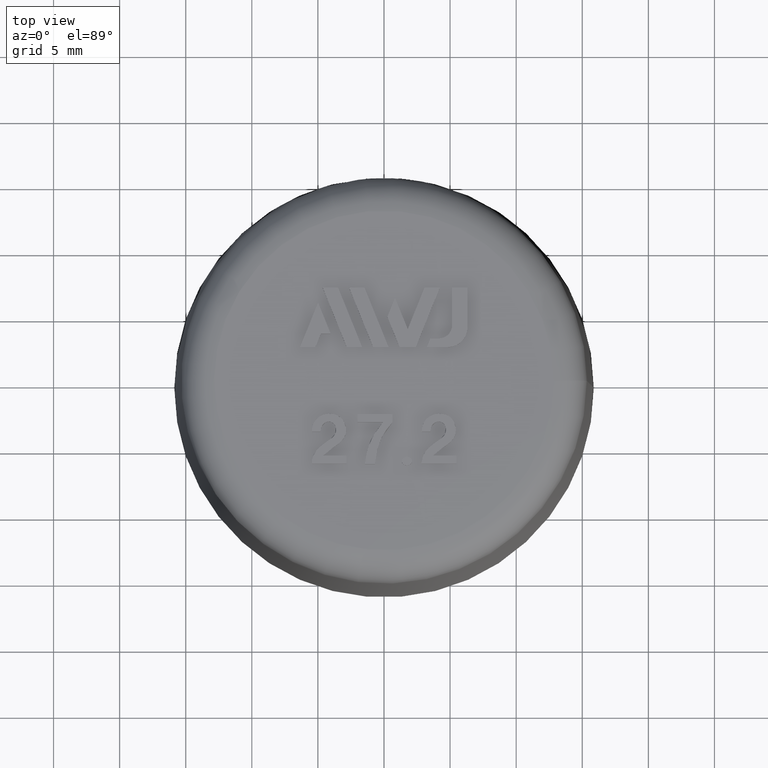
[diagram: clean part render]
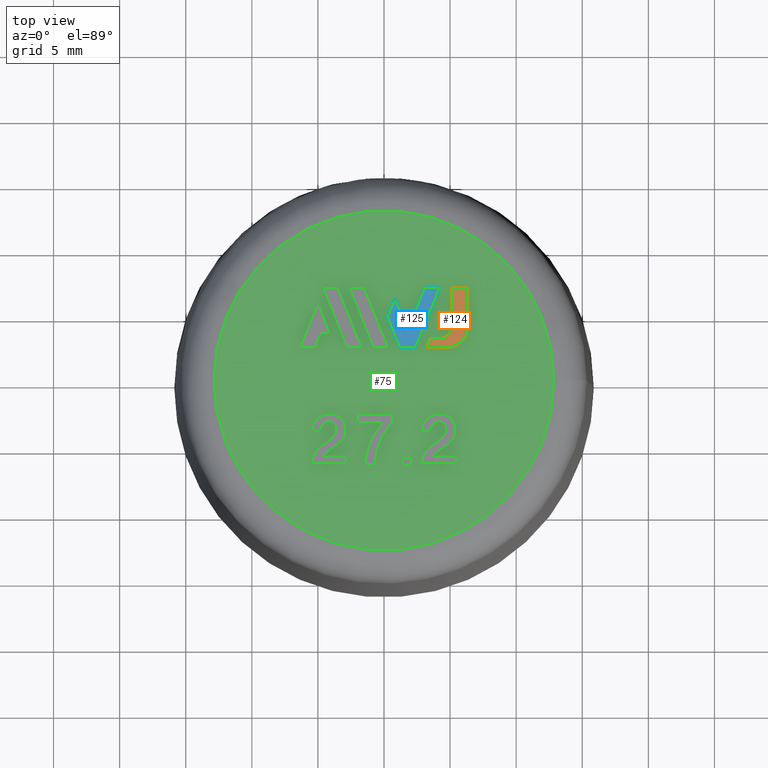
[diagram: same view with three faces highlighted in distinct colors, each labeled with its STEP entity id]
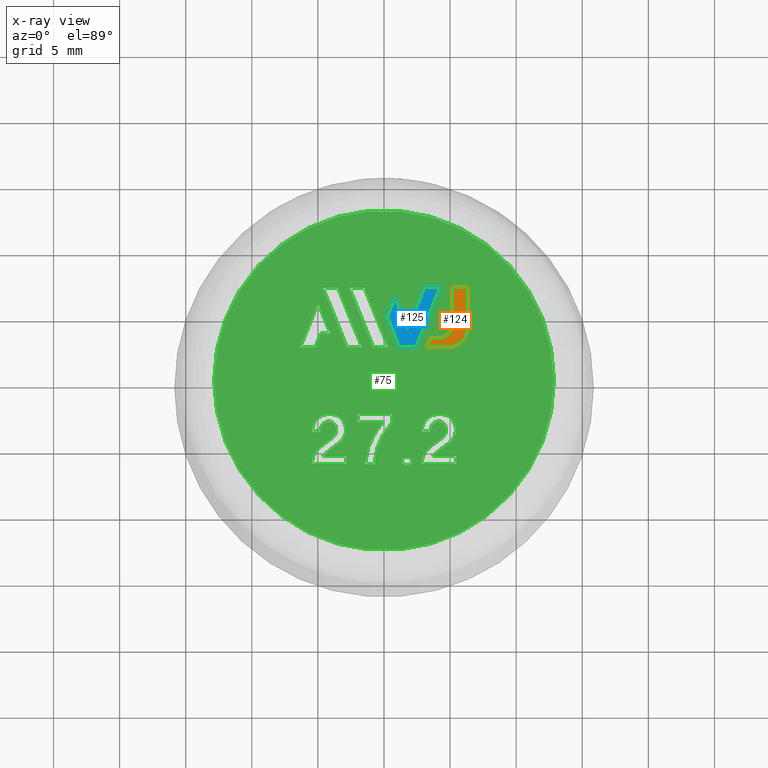
[diagram: x-ray of the same camera — body ghosted, the three highlighted faces saturated]
A machine part, top view with three faces highlighted in distinct colors.
The next image is the same camera in x-ray (body ghosted, the three faces saturated) — at least one of them is partly hidden behind the body in this view.
Their STEP definitions:

[orange] entity #124 — the highlighted planar face has unit normal (0, 0, -1).
#124 = ADVANCED_FACE( '', ( #253 ), #254, .F. );
#253 = FACE_OUTER_BOUND( '', #403, .T. );
#254 = PLANE( '', #404 );
#403 = EDGE_LOOP( '', ( #876, #877, #878, #879, #880, #881, #882, #883 ) );
#404 = AXIS2_PLACEMENT_3D( '', #884, #885, #886 );
#876 = ORIENTED_EDGE( '', *, *, #1113, .T. );
#877 = ORIENTED_EDGE( '', *, *, #1076, .T. );
#878 = ORIENTED_EDGE( '', *, *, #1114, .T. );
#879 = ORIENTED_EDGE( '', *, *, #1115, .T. );
#880 = ORIENTED_EDGE( '', *, *, #1116, .T. );
#881 = ORIENTED_EDGE( '', *, *, #1117, .T. );
#882 = ORIENTED_EDGE( '', *, *, #1118, .T. );
#883 = ORIENTED_EDGE( '', *, *, #1119, .T. );
#884 = CARTESIAN_POINT( '', ( 4.14390200000000, 4.15528254380107, 32.5000000000000 ) );
#885 = DIRECTION( '', ( 6.12303176911189E-017, 0.000000000000000, -1.00000000000000 ) );
#886 = DIRECTION( '', ( -0.780868809443032, 0.624695047554422, -4.78128452772826E-017 ) );
#1076 = EDGE_CURVE( '', #1299, #1297, #1300, .T. );
#1113 = EDGE_CURVE( '', #1353, #1299, #1354, .T. );
#1114 = EDGE_CURVE( '', #1297, #1355, #1356, .T. );
#1115 = EDGE_CURVE( '', #1355, #1357, #1358, .T. );
#1116 = EDGE_CURVE( '', #1357, #1359, #1360, .T. );
#1117 = EDGE_CURVE( '', #1359, #1361, #1362, .T. );
#1118 = EDGE_CURVE( '', #1361, #1363, #1364, .T. );
#1119 = EDGE_CURVE( '', #1363, #1353, #1365, .T. );
#1297 = VERTEX_POINT( '', #1754 );
#1299 = VERTEX_POINT( '', #1757 );
#1300 = LINE( '', #1758, #1759 );
#1353 = VERTEX_POINT( '', #1877 );
#1354 = LINE( '', #1878, #1879 );
#1355 = VERTEX_POINT( '', #1880 );
#1356 = CIRCLE( '', #1881, 1.00000000000000 );
#1357 = VERTEX_POINT( '', #1882 );
#1358 = LINE( '', #1883, #1884 );
#1359 = VERTEX_POINT( '', #1885 );
#1360 = LINE( '', #1886, #1887 );
#1361 = VERTEX_POINT( '', #1888 );
#1362 = LINE( '', #1889, #1890 );
#1363 = VERTEX_POINT( '', #1891 );
#1364 = CIRCLE( '', #1892, 1.50000000000000 );
#1365 = LINE( '', #1893, #1894 );
#1754 = CARTESIAN_POINT( '', ( 5.14390199999999, 4.15528254380107, 32.5000000000000 ) );
#1757 = CARTESIAN_POINT( '', ( 5.14390199999999, 6.99808404380107, 32.5000000000000 ) );
#1758 = CARTESIAN_POINT( '', ( 5.14390199999999, 6.99808404380107, 32.5000000000000 ) );
#1759 = VECTOR( '', #2004, 1000.00000000000 );
#1877 = CARTESIAN_POINT( '', ( 6.31907500000000, 6.99808404380107, 32.5000000000000 ) );
#1878 = CARTESIAN_POINT( '', ( 6.31907500000000, 6.99808404380107, 32.5000000000000 ) );
#1879 = VECTOR( '', #2035, 1000.00000000000 );
#1880 = CARTESIAN_POINT( '', ( 4.14390200000000, 3.15528254380107, 32.5000000000000 ) );
#1881 = AXIS2_PLACEMENT_3D( '', #2036, #2037, #2038 );
#1882 = CARTESIAN_POINT( '', ( 3.50517850000000, 3.15528254380107, 32.5000000000000 ) );
#1883 = CARTESIAN_POINT( '', ( 4.14390200000000, 3.15528254380107, 32.5000000000000 ) );
#1884 = VECTOR( '', #2039, 1000.00000000000 );
#1885 = CARTESIAN_POINT( '', ( 3.24098350000000, 2.50137604380106, 32.5000000000000 ) );
#1886 = CARTESIAN_POINT( '', ( 3.50517850000000, 3.15528254380107, 32.5000000000000 ) );
#1887 = VECTOR( '', #2040, 1000.00000000000 );
#1888 = CARTESIAN_POINT( '', ( 4.81907500000000, 2.50137604380106, 32.5000000000000 ) );
#1889 = CARTESIAN_POINT( '', ( 3.24098350000000, 2.50137604380106, 32.5000000000000 ) );
#1890 = VECTOR( '', #2041, 1000.00000000000 );
#1891 = CARTESIAN_POINT( '', ( 6.31907500000000, 4.00137604380106, 32.5000000000000 ) );
#1892 = AXIS2_PLACEMENT_3D( '', #2042, #2043, #2044 );
#1893 = CARTESIAN_POINT( '', ( 6.31907500000000, 4.00137604380106, 32.5000000000000 ) );
#1894 = VECTOR( '', #2045, 1000.00000000000 );
#2004 = DIRECTION( '', ( 4.28840465070809E-050, -1.00000000000000, -7.00372758531367E-034 ) );
#2035 = DIRECTION( '', ( -1.00000000000000, 1.11022302462516E-016, -1.83690953073357E-016 ) );
#2036 = CARTESIAN_POINT( '', ( 4.14390200000000, 4.15528254380107, 32.5000000000000 ) );
#2037 = DIRECTION( '', ( 6.12303176911189E-017, 0.000000000000000, -1.00000000000000 ) );
#2038 = DIRECTION( '', ( 1.00000000000000, 2.22044604925031E-016, 6.12303176911189E-017 ) );
#2039 = DIRECTION( '', ( -1.00000000000000, 1.11022302462516E-016, -1.83690953073357E-016 ) );
#2040 = DIRECTION( '', ( -0.374606136016172, -0.927184039368147, -6.88117581519382E-017 ) );
#2041 = DIRECTION( '', ( 1.00000000000000, -1.11022302462516E-016, 1.83690953073357E-016 ) );
#2042 = CARTESIAN_POINT( '', ( 4.81907500000000, 4.00137604380106, 32.5000000000000 ) );
#2043 = DIRECTION( '', ( -6.12303176911189E-017, 4.86561966779450E-048, 1.00000000000000 ) );
#2044 = DIRECTION( '', ( 1.00000000000000, 3.88578058618805E-016, 6.12303176911189E-017 ) );
#2045 = DIRECTION( '', ( -4.28840465070809E-050, 1.00000000000000, 7.00372758531368E-034 ) );

[blue] entity #125 — the highlighted planar face has unit normal (-0, 0, 1).
#125 = ADVANCED_FACE( '', ( #255 ), #256, .T. );
#255 = FACE_OUTER_BOUND( '', #405, .T. );
#256 = PLANE( '', #406 );
#405 = EDGE_LOOP( '', ( #887, #888, #889, #890, #891, #892, #893 ) );
#406 = AXIS2_PLACEMENT_3D( '', #894, #895, #896 );
#887 = ORIENTED_EDGE( '', *, *, #1096, .T. );
#888 = ORIENTED_EDGE( '', *, *, #1120, .T. );
#889 = ORIENTED_EDGE( '', *, *, #1121, .T. );
#890 = ORIENTED_EDGE( '', *, *, #1122, .T. );
#891 = ORIENTED_EDGE( '', *, *, #1123, .T. );
#892 = ORIENTED_EDGE( '', *, *, #1124, .T. );
#893 = ORIENTED_EDGE( '', *, *, #1125, .T. );
#894 = CARTESIAN_POINT( '', ( 4.22159400000000, 6.99808404380107, 32.5000000000000 ) );
#895 = DIRECTION( '', ( -1.83690953073357E-016, 0.000000000000000, 1.00000000000000 ) );
#896 = DIRECTION( '', ( 0.780868809443032, -0.624695047554422, 1.43438535831848E-016 ) );
#1096 = EDGE_CURVE( '', #1330, #1328, #1331, .T. );
#1120 = EDGE_CURVE( '', #1328, #1366, #1367, .T. );
#1121 = EDGE_CURVE( '', #1366, #1368, #1369, .T. );
#1122 = EDGE_CURVE( '', #1368, #1370, #1371, .T. );
#1123 = EDGE_CURVE( '', #1370, #1372, #1373, .T. );
#1124 = EDGE_CURVE( '', #1372, #1374, #1375, .T. );
#1125 = EDGE_CURVE( '', #1374, #1330, #1376, .T. );
#1328 = VERTEX_POINT( '', #1804 );
#1330 = VERTEX_POINT( '', #1807 );
#1331 = LINE( '', #1808, #1809 );
#1366 = VERTEX_POINT( '', #1895 );
#1367 = LINE( '', #1896, #1897 );
#1368 = VERTEX_POINT( '', #1898 );
#1369 = LINE( '', #1899, #1900 );
#1370 = VERTEX_POINT( '', #1901 );
#1371 = LINE( '', #1902, #1903 );
#1372 = VERTEX_POINT( '', #1904 );
#1373 = LINE( '', #1905, #1906 );
#1374 = VERTEX_POINT( '', #1907 );
#1375 = LINE( '', #1908, #1909 );
#1376 = LINE( '', #1910, #1911 );
#1804 = CARTESIAN_POINT( '', ( 4.22159400000000, 6.99808404380107, 32.5000000000000 ) );
#1807 = CARTESIAN_POINT( '', ( 2.40489699999999, 2.50137604380106, 32.5000000000000 ) );
#1808 = CARTESIAN_POINT( '', ( 2.40489699999999, 2.50137604380107, 32.5000000000000 ) );
#1809 = VECTOR( '', #2026, 1000.00000000000 );
#1895 = CARTESIAN_POINT( '', ( 3.05959900000000, 6.99808404380107, 32.5000000000000 ) );
#1896 = CARTESIAN_POINT( '', ( 4.22159400000000, 6.99808404380107, 32.5000000000000 ) );
#1897 = VECTOR( '', #2046, 1000.00000000000 );
#1898 = CARTESIAN_POINT( '', ( 1.79060100000000, 3.85757254380107, 32.5000000000000 ) );
#1899 = CARTESIAN_POINT( '', ( 3.05959900000000, 6.99808404380107, 32.5000000000000 ) );
#1900 = VECTOR( '', #2047, 1000.00000000000 );
#1901 = CARTESIAN_POINT( '', ( 0.831794000000000, 6.23059354380108, 32.5000000000000 ) );
#1902 = CARTESIAN_POINT( '', ( 1.79060100000000, 3.85757254380107, 32.5000000000000 ) );
#1903 = VECTOR( '', #2048, 1000.00000000000 );
#1904 = CARTESIAN_POINT( '', ( 0.250796500000001, 4.79232254380108, 32.5000000000000 ) );
#1905 = CARTESIAN_POINT( '', ( 0.831793999999997, 6.23059354380108, 32.5000000000000 ) );
#1906 = VECTOR( '', #2049, 1000.00000000000 );
#1907 = CARTESIAN_POINT( '', ( 1.17656050000000, 2.50137604380106, 32.5000000000000 ) );
#1908 = CARTESIAN_POINT( '', ( 0.250796500000002, 4.79232254380108, 32.5000000000000 ) );
#1909 = VECTOR( '', #2050, 1000.00000000000 );
#1910 = CARTESIAN_POINT( '', ( 1.17656050000000, 2.50137604380106, 32.5000000000000 ) );
#1911 = VECTOR( '', #2051, 1000.00000000000 );
#2026 = DIRECTION( '', ( 0.374590469627020, 0.927190368837278, 6.88088803779836E-017 ) );
#2046 = DIRECTION( '', ( -1.00000000000000, 1.11022302462516E-016, -1.83690953073357E-016 ) );
#2047 = DIRECTION( '', ( -0.374644407000048, -0.927168575990139, -6.88187881854414E-017 ) );
#2048 = DIRECTION( '', ( -0.374621466961798, 0.927177845125405, -6.88145743079517E-017 ) );
#2049 = DIRECTION( '', ( -0.374550228315492, -0.927206625552693, -6.88014884131161E-017 ) );
#2050 = DIRECTION( '', ( 0.374662791989133, -0.927161146888127, 6.88221653416086E-017 ) );
#2051 = DIRECTION( '', ( 1.00000000000000, 0.000000000000000, 1.83690953073357E-016 ) );

[green] entity #75 — the highlighted planar face has unit normal (0, 0, -1).
#75 = ADVANCED_FACE( '', ( #140, #141, #142, #143, #144, #145, #146, #147, #148, #149 ), #150, .F. );
#140 = FACE_BOUND( '', #283, .T. );
#141 = FACE_BOUND( '', #284, .T. );
#142 = FACE_BOUND( '', #285, .T. );
#143 = FACE_BOUND( '', #286, .T. );
#144 = FACE_BOUND( '', #287, .T. );
#145 = FACE_BOUND( '', #288, .T. );
#146 = FACE_OUTER_BOUND( '', #289, .T. );
#147 = FACE_BOUND( '', #290, .T. );
#148 = FACE_BOUND( '', #291, .T. );
#149 = FACE_BOUND( '', #292, .T. );
#150 = PLANE( '', #293 );
#283 = EDGE_LOOP( '', ( #433, #434, #435, #436, #437, #438 ) );
#284 = EDGE_LOOP( '', ( #439 ) );
#285 = EDGE_LOOP( '', ( #440, #441, #442, #443, #444, #445, #446 ) );
#286 = EDGE_LOOP( '', ( #447, #448, #449, #450, #451, #452 ) );
#287 = EDGE_LOOP( '', ( #453, #454, #455, #456 ) );
#288 = EDGE_LOOP( '', ( #457, #458, #459, #460, #461, #462, #463 ) );
#289 = EDGE_LOOP( '', ( #464 ) );
#290 = EDGE_LOOP( '', ( #465, #466, #467, #468, #469, #470, #471, #472 ) );
#291 = EDGE_LOOP( '', ( #473, #474, #475, #476 ) );
#292 = EDGE_LOOP( '', ( #477, #478, #479, #480, #481 ) );
#293 = AXIS2_PLACEMENT_3D( '', #482, #483, #484 );
#433 = ORIENTED_EDGE( '', *, *, #988, .T. );
#434 = ORIENTED_EDGE( '', *, *, #989, .T. );
#435 = ORIENTED_EDGE( '', *, *, #990, .T. );
#436 = ORIENTED_EDGE( '', *, *, #991, .T. );
#437 = ORIENTED_EDGE( '', *, *, #992, .T. );
#438 = ORIENTED_EDGE( '', *, *, #993, .T. );
#439 = ORIENTED_EDGE( '', *, *, #994, .T. );
#440 = ORIENTED_EDGE( '', *, *, #995, .T. );
#441 = ORIENTED_EDGE( '', *, *, #996, .T. );
#442 = ORIENTED_EDGE( '', *, *, #997, .T. );
#443 = ORIENTED_EDGE( '', *, *, #998, .T. );
#444 = ORIENTED_EDGE( '', *, *, #999, .T. );
#445 = ORIENTED_EDGE( '', *, *, #1000, .T. );
#446 = ORIENTED_EDGE( '', *, *, #1001, .T. );
#447 = ORIENTED_EDGE( '', *, *, #1002, .T. );
#448 = ORIENTED_EDGE( '', *, *, #1003, .T. );
#449 = ORIENTED_EDGE( '', *, *, #1004, .T. );
#450 = ORIENTED_EDGE( '', *, *, #1005, .T. );
#451 = ORIENTED_EDGE( '', *, *, #1006, .T. );
#452 = ORIENTED_EDGE( '', *, *, #1007, .T. );
#453 = ORIENTED_EDGE( '', *, *, #1008, .F. );
#454 = ORIENTED_EDGE( '', *, *, #1009, .F. );
#455 = ORIENTED_EDGE( '', *, *, #1010, .F. );
#456 = ORIENTED_EDGE( '', *, *, #1011, .F. );
#457 = ORIENTED_EDGE( '', *, *, #1012, .F. );
#458 = ORIENTED_EDGE( '', *, *, #1013, .F. );
#459 = ORIENTED_EDGE( '', *, *, #1014, .F. );
#460 = ORIENTED_EDGE( '', *, *, #1015, .F. );
#461 = ORIENTED_EDGE( '', *, *, #1016, .F. );
#462 = ORIENTED_EDGE( '', *, *, #1017, .F. );
#463 = ORIENTED_EDGE( '', *, *, #1018, .F. );
#464 = ORIENTED_EDGE( '', *, *, #1019, .T. );
#465 = ORIENTED_EDGE( '', *, *, #1020, .F. );
#466 = ORIENTED_EDGE( '', *, *, #1021, .F. );
#467 = ORIENTED_EDGE( '', *, *, #1022, .F. );
#468 = ORIENTED_EDGE( '', *, *, #1023, .F. );
#469 = ORIENTED_EDGE( '', *, *, #1024, .F. );
#470 = ORIENTED_EDGE( '', *, *, #1025, .F. );
#471 = ORIENTED_EDGE( '', *, *, #1026, .F. );
#472 = ORIENTED_EDGE( '', *, *, #1027, .F. );
#473 = ORIENTED_EDGE( '', *, *, #1028, .F. );
#474 = ORIENTED_EDGE( '', *, *, #1029, .F. );
#475 = ORIENTED_EDGE( '', *, *, #1030, .F. );
#476 = ORIENTED_EDGE( '', *, *, #1031, .F. );
#477 = ORIENTED_EDGE( '', *, *, #1032, .F. );
#478 = ORIENTED_EDGE( '', *, *, #1033, .F. );
#479 = ORIENTED_EDGE( '', *, *, #1034, .F. );
#480 = ORIENTED_EDGE( '', *, *, #1035, .F. );
#481 = ORIENTED_EDGE( '', *, *, #1036, .F. );
#482 = CARTESIAN_POINT( '', ( -1.95937016611580E-015, 12.8468253945189, 32.0000000000000 ) );
#483 = DIRECTION( '', ( 6.12303176911189E-017, 0.000000000000000, -1.00000000000000 ) );
#484 = DIRECTION( '', ( -1.00000000000000, 0.000000000000000, -6.12303176911189E-017 ) );
#988 = EDGE_CURVE( '', #1137, #1138, #1139, .T. );
#989 = EDGE_CURVE( '', #1138, #1140, #1141, .T. );
#990 = EDGE_CURVE( '', #1140, #1142, #1143, .T. );
#991 = EDGE_CURVE( '', #1142, #1144, #1145, .T. );
#992 = EDGE_CURVE( '', #1144, #1146, #1147, .T. );
#993 = EDGE_CURVE( '', #1146, #1137, #1148, .T. );
#994 = EDGE_CURVE( '', #1149, #1149, #1150, .T. );
#995 = EDGE_CURVE( '', #1151, #1152, #1153, .T. );
#996 = EDGE_CURVE( '', #1152, #1154, #1155, .T. );
#997 = EDGE_CURVE( '', #1154, #1156, #1157, .T. );
#998 = EDGE_CURVE( '', #1156, #1158, #1159, .T. );
#999 = EDGE_CURVE( '', #1158, #1160, #1161, .T. );
#1000 = EDGE_CURVE( '', #1160, #1162, #1163, .T. );
#1001 = EDGE_CURVE( '', #1162, #1151, #1164, .T. );
#1002 = EDGE_CURVE( '', #1165, #1166, #1167, .T. );
#1003 = EDGE_CURVE( '', #1166, #1168, #1169, .T. );
#1004 = EDGE_CURVE( '', #1168, #1170, #1171, .T. );
#1005 = EDGE_CURVE( '', #1170, #1172, #1173, .T. );
#1006 = EDGE_CURVE( '', #1172, #1174, #1175, .T. );
#1007 = EDGE_CURVE( '', #1174, #1165, #1176, .T. );
#1008 = EDGE_CURVE( '', #1177, #1178, #1179, .T. );
#1009 = EDGE_CURVE( '', #1180, #1177, #1181, .T. );
#1010 = EDGE_CURVE( '', #1182, #1180, #1183, .T. );
#1011 = EDGE_CURVE( '', #1178, #1182, #1184, .T. );
#1012 = EDGE_CURVE( '', #1185, #1186, #1187, .T. );
#1013 = EDGE_CURVE( '', #1188, #1185, #1189, .T. );
#1014 = EDGE_CURVE( '', #1190, #1188, #1191, .T. );
#1015 = EDGE_CURVE( '', #1192, #1190, #1193, .T. );
#1016 = EDGE_CURVE( '', #1194, #1192, #1195, .T. );
#1017 = EDGE_CURVE( '', #1196, #1194, #1197, .T. );
#1018 = EDGE_CURVE( '', #1186, #1196, #1198, .T. );
#1019 = EDGE_CURVE( '', #1199, #1199, #1200, .T. );
#1020 = EDGE_CURVE( '', #1201, #1202, #1203, .T. );
#1021 = EDGE_CURVE( '', #1204, #1201, #1205, .T. );
#1022 = EDGE_CURVE( '', #1206, #1204, #1207, .T. );
#1023 = EDGE_CURVE( '', #1208, #1206, #1209, .T. );
#1024 = EDGE_CURVE( '', #1210, #1208, #1211, .T. );
#1025 = EDGE_CURVE( '', #1212, #1210, #1213, .T. );
#1026 = EDGE_CURVE( '', #1214, #1212, #1215, .T. );
#1027 = EDGE_CURVE( '', #1202, #1214, #1216, .T. );
#1028 = EDGE_CURVE( '', #1217, #1218, #1219, .T. );
#1029 = EDGE_CURVE( '', #1220, #1217, #1221, .T. );
#1030 = EDGE_CURVE( '', #1222, #1220, #1223, .T. );
#1031 = EDGE_CURVE( '', #1218, #1222, #1224, .T. );
#1032 = EDGE_CURVE( '', #1225, #1226, #1227, .T. );
#1033 = EDGE_CURVE( '', #1228, #1225, #1229, .T. );
#1034 = EDGE_CURVE( '', #1230, #1228, #1231, .T. );
#1035 = EDGE_CURVE( '', #1232, #1230, #1233, .T. );
#1036 = EDGE_CURVE( '', #1226, #1232, #1234, .T. );
#1137 = VERTEX_POINT( '', #1388 );
#1138 = VERTEX_POINT( '', #1389 );
#1139 = B_SPLINE_CURVE_WITH_KNOTS( '', 2, ( #1390, #1391, #1392 ), .UNSPECIFIED., .F., .F., ( 3, 3 ), ( 15.0000000000000, 16.0000000000000 ), .UNSPECIFIED. );
#1140 = VERTEX_POINT( '', #1393 );
#1141 = B_SPLINE_CURVE_WITH_KNOTS( '', 2, ( #1394, #1395, #1396, #1397, #1398, #1399, #1400, #1401, #1402, #1403, #1404, #1405, #1406 ), .UNSPECIFIED., .F., .F., ( 3, 2, 2, 2, 2, 2, 3 ), ( 0.000000000000000, 1.00000000000000, 2.00000000000000, 3.00000000000000, 4.00000000000000, 5.00000000000000, 6.00000000000000 ), .UNSPECIFIED. );
#1142 = VERTEX_POINT( '', #1407 );
#1143 = B_SPLINE_CURVE_WITH_KNOTS( '', 2, ( #1408, #1409, #1410 ), .UNSPECIFIED., .F., .F., ( 3, 3 ), ( 6.00000000000000, 7.00000000000000 ), .UNSPECIFIED. );
#1144 = VERTEX_POINT( '', #1411 );
#1145 = B_SPLINE_CURVE_WITH_KNOTS( '', 2, ( #1412, #1413, #1414 ), .UNSPECIFIED., .F., .F., ( 3, 3 ), ( 7.00000000000000, 8.00000000000000 ), .UNSPECIFIED. );
#1146 = VERTEX_POINT( '', #1415 );
#1147 = B_SPLINE_CURVE_WITH_KNOTS( '', 2, ( #1416, #1417, #1418 ), .UNSPECIFIED., .F., .F., ( 3, 3 ), ( 8.00000000000000, 9.00000000000000 ), .UNSPECIFIED. );
#1148 = B_SPLINE_CURVE_WITH_KNOTS( '', 2, ( #1419, #1420, #1421, #1422, #1423, #1424, #1425, #1426, #1427, #1428, #1429, #1430, #1431 ), .UNSPECIFIED., .F., .F., ( 3, 2, 2, 2, 2, 2, 3 ), ( 9.00000000000000, 10.0000000000000, 11.0000000000000, 12.0000000000000, 13.0000000000000, 14.0000000000000, 15.0000000000000 ), .UNSPECIFIED. );
#1149 = VERTEX_POINT( '', #1432 );
#1150 = B_SPLINE_CURVE_WITH_KNOTS( '', 2, ( #1433, #1434, #1435, #1436, #1437, #1438, #1439, #1440, #1441, #1442, #1443, #1444, #1445, #1446, #1447, #1448, #1449 ), .UNSPECIFIED., .T., .F., ( 3, 2, 2, 2, 2, 2, 2, 2, 3 ), ( 0.000000000000000, 1.00000000000000, 2.00000000000000, 3.00000000000000, 4.00000000000000, 5.00000000000000, 6.00000000000000, 7.00000000000000, 8.00000000000000 ), .UNSPECIFIED. );
#1151 = VERTEX_POINT( '', #1450 );
#1152 = VERTEX_POINT( '', #1451 );
#1153 = B_SPLINE_CURVE_WITH_KNOTS( '', 2, ( #1452, #1453, #1454 ), .UNSPECIFIED., .F., .F., ( 3, 3 ), ( 8.00000000000000, 9.00000000000000 ), .UNSPECIFIED. );
#1154 = VERTEX_POINT( '', #1455 );
#1155 = B_SPLINE_CURVE_WITH_KNOTS( '', 2, ( #1456, #1457, #1458 ), .UNSPECIFIED., .F., .F., ( 3, 3 ), ( 0.000000000000000, 1.00000000000000 ), .UNSPECIFIED. );
#1156 = VERTEX_POINT( '', #1459 );
#1157 = B_SPLINE_CURVE_WITH_KNOTS( '', 2, ( #1460, #1461, #1462 ), .UNSPECIFIED., .F., .F., ( 3, 3 ), ( 1.00000000000000, 2.00000000000000 ), .UNSPECIFIED. );
#1158 = VERTEX_POINT( '', #1463 );
#1159 = B_SPLINE_CURVE_WITH_KNOTS( '', 2, ( #1464, #1465, #1466 ), .UNSPECIFIED., .F., .F., ( 3, 3 ), ( 2.00000000000000, 3.00000000000000 ), .UNSPECIFIED. );
#1160 = VERTEX_POINT( '', #1467 );
#1161 = B_SPLINE_CURVE_WITH_KNOTS( '', 2, ( #1468, #1469, #1470, #1471, #1472 ), .UNSPECIFIED., .F., .F., ( 3, 2, 3 ), ( 3.00000000000000, 4.00000000000000, 5.00000000000000 ), .UNSPECIFIED. );
#1162 = VERTEX_POINT( '', #1473 );
#1163 = B_SPLINE_CURVE_WITH_KNOTS( '', 2, ( #1474, #1475, #1476 ), .UNSPECIFIED., .F., .F., ( 3, 3 ), ( 5.00000000000000, 6.00000000000000 ), .UNSPECIFIED. );
#1164 = B_SPLINE_CURVE_WITH_KNOTS( '', 2, ( #1477, #1478, #1479, #1480, #1481 ), .UNSPECIFIED., .F., .F., ( 3, 2, 3 ), ( 6.00000000000000, 7.00000000000000, 8.00000000000000 ), .UNSPECIFIED. );
#1165 = VERTEX_POINT( '', #1482 );
#1166 = VERTEX_POINT( '', #1483 );
#1167 = B_SPLINE_CURVE_WITH_KNOTS( '', 2, ( #1484, #1485, #1486 ), .UNSPECIFIED., .F., .F., ( 3, 3 ), ( 15.0000000000000, 16.0000000000000 ), .UNSPECIFIED. );
#1168 = VERTEX_POINT( '', #1487 );
#1169 = B_SPLINE_CURVE_WITH_KNOTS( '', 2, ( #1488, #1489, #1490, #1491, #1492, #1493, #1494, #1495, #1496, #1497, #1498, #1499, #1500 ), .UNSPECIFIED., .F., .F., ( 3, 2, 2, 2, 2, 2, 3 ), ( 0.000000000000000, 1.00000000000000, 2.00000000000000, 3.00000000000000, 4.00000000000000, 5.00000000000000, 6.00000000000000 ), .UNSPECIFIED. );
#1170 = VERTEX_POINT( '', #1501 );
#1171 = B_SPLINE_CURVE_WITH_KNOTS( '', 2, ( #1502, #1503, #1504 ), .UNSPECIFIED., .F., .F., ( 3, 3 ), ( 6.00000000000000, 7.00000000000000 ), .UNSPECIFIED. );
#1172 = VERTEX_POINT( '', #1505 );
#1173 = B_SPLINE_CURVE_WITH_KNOTS( '', 2, ( #1506, #1507, #1508 ), .UNSPECIFIED., .F., .F., ( 3, 3 ), ( 7.00000000000000, 8.00000000000000 ), .UNSPECIFIED. );
#1174 = VERTEX_POINT( '', #1509 );
#1175 = B_SPLINE_CURVE_WITH_KNOTS( '', 2, ( #1510, #1511, #1512 ), .UNSPECIFIED., .F., .F., ( 3, 3 ), ( 8.00000000000000, 9.00000000000000 ), .UNSPECIFIED. );
#1176 = B_SPLINE_CURVE_WITH_KNOTS( '', 2, ( #1513, #1514, #1515, #1516, #1517, #1518, #1519, #1520, #1521, #1522, #1523, #1524, #1525 ), .UNSPECIFIED., .F., .F., ( 3, 2, 2, 2, 2, 2, 3 ), ( 9.00000000000000, 10.0000000000000, 11.0000000000000, 12.0000000000000, 13.0000000000000, 14.0000000000000, 15.0000000000000 ), .UNSPECIFIED. );
#1177 = VERTEX_POINT( '', #1526 );
#1178 = VERTEX_POINT( '', #1527 );
#1179 = LINE( '', #1528, #1529 );
#1180 = VERTEX_POINT( '', #1530 );
#1181 = LINE( '', #1531, #1532 );
#1182 = VERTEX_POINT( '', #1533 );
#1183 = LINE( '', #1534, #1535 );
#1184 = LINE( '', #1536, #1537 );
#1185 = VERTEX_POINT( '', #1538 );
#1186 = VERTEX_POINT( '', #1539 );
#1187 = LINE( '', #1540, #1541 );
#1188 = VERTEX_POINT( '', #1542 );
#1189 = LINE( '', #1543, #1544 );
#1190 = VERTEX_POINT( '', #1545 );
#1191 = LINE( '', #1546, #1547 );
#1192 = VERTEX_POINT( '', #1548 );
#1193 = LINE( '', #1549, #1550 );
#1194 = VERTEX_POINT( '', #1551 );
#1195 = LINE( '', #1552, #1553 );
#1196 = VERTEX_POINT( '', #1554 );
#1197 = LINE( '', #1555, #1556 );
#1198 = LINE( '', #1557, #1558 );
#1199 = VERTEX_POINT( '', #1559 );
#1200 = CIRCLE( '', #1560, 12.8468253945189 );
#1201 = VERTEX_POINT( '', #1561 );
#1202 = VERTEX_POINT( '', #1562 );
#1203 = LINE( '', #1563, #1564 );
#1204 = VERTEX_POINT( '', #1565 );
#1205 = LINE( '', #1566, #1567 );
#1206 = VERTEX_POINT( '', #1568 );
#1207 = LINE( '', #1569, #1570 );
#1208 = VERTEX_POINT( '', #1571 );
#1209 = CIRCLE( '', #1572, 1.50000000000000 );
#1210 = VERTEX_POINT( '', #1573 );
#1211 = LINE( '', #1574, #1575 );
#1212 = VERTEX_POINT( '', #1576 );
#1213 = LINE( '', #1577, #1578 );
#1214 = VERTEX_POINT( '', #1579 );
#1215 = LINE( '', #1580, #1581 );
#1216 = CIRCLE( '', #1582, 1.00000000000000 );
#1217 = VERTEX_POINT( '', #1583 );
#1218 = VERTEX_POINT( '', #1584 );
#1219 = LINE( '', #1585, #1586 );
#1220 = VERTEX_POINT( '', #1587 );
#1221 = LINE( '', #1588, #1589 );
#1222 = VERTEX_POINT( '', #1590 );
#1223 = LINE( '', #1591, #1592 );
#1224 = LINE( '', #1593, #1594 );
#1225 = VERTEX_POINT( '', #1595 );
#1226 = VERTEX_POINT( '', #1596 );
#1227 = LINE( '', #1597, #1598 );
#1228 = VERTEX_POINT( '', #1599 );
#1229 = LINE( '', #1600, #1601 );
#1230 = VERTEX_POINT( '', #1602 );
#1231 = LINE( '', #1603, #1604 );
#1232 = VERTEX_POINT( '', #1605 );
#1233 = LINE( '', #1606, #1607 );
#1234 = LINE( '', #1608, #1609 );
#1388 = CARTESIAN_POINT( '', ( 3.50181818181817, -3.88953304710803, 32.0000000000000 ) );
#1389 = CARTESIAN_POINT( '', ( 2.84727272727272, -3.88953304710803, 32.0000000000000 ) );
#1390 = CARTESIAN_POINT( '', ( 3.50181818181817, -3.88953304710803, 32.0000000000000 ) );
#1391 = CARTESIAN_POINT( '', ( 3.17454545454545, -3.88953304710803, 32.0000000000000 ) );
#1392 = CARTESIAN_POINT( '', ( 2.84727272727272, -3.88953304710803, 32.0000000000000 ) );
#1393 = CARTESIAN_POINT( '', ( 3.69818181818181, -5.72589668347166, 32.0000000000000 ) );
#1394 = CARTESIAN_POINT( '', ( 2.84727272727272, -3.88953304710803, 32.0000000000000 ) );
#1395 = CARTESIAN_POINT( '', ( 2.84727272727272, -3.27135122892621, 32.0000000000000 ) );
#1396 = CARTESIAN_POINT( '', ( 3.24906405263864, -2.89932222395777, 32.0000000000000 ) );
#1397 = CARTESIAN_POINT( '', ( 3.63272727272726, -2.54407850165348, 32.0000000000000 ) );
#1398 = CARTESIAN_POINT( '', ( 4.17818181818181, -2.54407850165348, 32.0000000000000 ) );
#1399 = CARTESIAN_POINT( '', ( 5.11636363636363, -2.54407850165348, 32.0000000000000 ) );
#1400 = CARTESIAN_POINT( '', ( 5.38027020838103, -3.37978264637526, 32.0000000000000 ) );
#1401 = CARTESIAN_POINT( '', ( 5.66181818181817, -4.27135122892621, 32.0000000000000 ) );
#1402 = CARTESIAN_POINT( '', ( 4.75063960716875, -4.89708342910984, 32.0000000000000 ) );
#1403 = CARTESIAN_POINT( '', ( 4.48363636363636, -5.08044213801712, 32.0000000000000 ) );
#1404 = CARTESIAN_POINT( '', ( 4.22268621407367, -5.27253044255632, 32.0000000000000 ) );
#1405 = CARTESIAN_POINT( '', ( 3.82909090909090, -5.56226031983530, 32.0000000000000 ) );
#1406 = CARTESIAN_POINT( '', ( 3.69818181818181, -5.72589668347166, 32.0000000000000 ) );
#1407 = CARTESIAN_POINT( '', ( 5.46545454545454, -5.72589668347166, 32.0000000000000 ) );
#1408 = CARTESIAN_POINT( '', ( 3.69818181818181, -5.72589668347166, 32.0000000000000 ) );
#1409 = CARTESIAN_POINT( '', ( 4.58181818181817, -5.72589668347166, 32.0000000000000 ) );
#1410 = CARTESIAN_POINT( '', ( 5.46545454545454, -5.72589668347166, 32.0000000000000 ) );
#1411 = CARTESIAN_POINT( '', ( 5.46545454545454, -6.32589668347167, 32.0000000000000 ) );
#1412 = CARTESIAN_POINT( '', ( 5.46545454545454, -5.72589668347166, 32.0000000000000 ) );
#1413 = CARTESIAN_POINT( '', ( 5.46545454545454, -6.02589668347167, 32.0000000000000 ) );
#1414 = CARTESIAN_POINT( '', ( 5.46545454545454, -6.32589668347167, 32.0000000000000 ) );
#1415 = CARTESIAN_POINT( '', ( 2.84727272727272, -6.32589668347167, 32.0000000000000 ) );
#1416 = CARTESIAN_POINT( '', ( 5.46545454545454, -6.32589668347167, 32.0000000000000 ) );
#1417 = CARTESIAN_POINT( '', ( 4.15636363636363, -6.32589668347167, 32.0000000000000 ) );
#1418 = CARTESIAN_POINT( '', ( 2.84727272727272, -6.32589668347167, 32.0000000000000 ) );
#1419 = CARTESIAN_POINT( '', ( 2.84727272727272, -6.32589668347167, 32.0000000000000 ) );
#1420 = CARTESIAN_POINT( '', ( 2.82545454545454, -5.48953304710803, 32.0000000000000 ) );
#1421 = CARTESIAN_POINT( '', ( 3.65554074901437, -4.89091318877161, 32.0000000000000 ) );
#1422 = CARTESIAN_POINT( '', ( 3.95999999999999, -4.67135122892621, 32.0000000000000 ) );
#1423 = CARTESIAN_POINT( '', ( 4.26409106403197, -4.45128532732412, 32.0000000000000 ) );
#1424 = CARTESIAN_POINT( '', ( 4.78909090909090, -4.07135122892621, 32.0000000000000 ) );
#1425 = CARTESIAN_POINT( '', ( 4.66234024171632, -3.56669579400888, 32.0000000000000 ) );
#1426 = CARTESIAN_POINT( '', ( 4.59272727272726, -3.28953304710803, 32.0000000000000 ) );
#1427 = CARTESIAN_POINT( '', ( 4.35474374054780, -3.17620755559400, 32.0000000000000 ) );
#1428 = CARTESIAN_POINT( '', ( 4.13454545454545, -3.07135122892621, 32.0000000000000 ) );
#1429 = CARTESIAN_POINT( '', ( 3.87352931347539, -3.20024808871389, 32.0000000000000 ) );
#1430 = CARTESIAN_POINT( '', ( 3.54545454545454, -3.36226031983530, 32.0000000000000 ) );
#1431 = CARTESIAN_POINT( '', ( 3.50181818181817, -3.88953304710803, 32.0000000000000 ) );
#1432 = CARTESIAN_POINT( '', ( 1.73454545454545, -5.79862395619894, 32.0000000000000 ) );
#1433 = CARTESIAN_POINT( '', ( 1.73454545454545, -5.79862395619894, 32.0000000000000 ) );
#1434 = CARTESIAN_POINT( '', ( 1.88727272727272, -5.79862395619894, 32.0000000000000 ) );
#1435 = CARTESIAN_POINT( '', ( 2.01818181818181, -5.90771486528985, 32.0000000000000 ) );
#1436 = CARTESIAN_POINT( '', ( 2.12727272727272, -5.99862395619894, 32.0000000000000 ) );
#1437 = CARTESIAN_POINT( '', ( 2.12727272727272, -6.12589668347167, 32.0000000000000 ) );
#1438 = CARTESIAN_POINT( '', ( 2.12727272727272, -6.25316941074439, 32.0000000000000 ) );
#1439 = CARTESIAN_POINT( '', ( 2.01818181818181, -6.34407850165348, 32.0000000000000 ) );
#1440 = CARTESIAN_POINT( '', ( 1.88727272727272, -6.45316941074439, 32.0000000000000 ) );
#1441 = CARTESIAN_POINT( '', ( 1.73454545454545, -6.45316941074439, 32.0000000000000 ) );
#1442 = CARTESIAN_POINT( '', ( 1.58181818181818, -6.45316941074439, 32.0000000000000 ) );
#1443 = CARTESIAN_POINT( '', ( 1.45090909090908, -6.34407850165348, 32.0000000000000 ) );
#1444 = CARTESIAN_POINT( '', ( 1.34181818181817, -6.25316941074439, 32.0000000000000 ) );
#1445 = CARTESIAN_POINT( '', ( 1.34181818181817, -6.12589668347167, 32.0000000000000 ) );
#1446 = CARTESIAN_POINT( '', ( 1.34181818181817, -5.99862395619894, 32.0000000000000 ) );
#1447 = CARTESIAN_POINT( '', ( 1.45090909090908, -5.90771486528985, 32.0000000000000 ) );
#1448 = CARTESIAN_POINT( '', ( 1.58181818181818, -5.79862395619894, 32.0000000000000 ) );
#1449 = CARTESIAN_POINT( '', ( 1.73454545454545, -5.79862395619894, 32.0000000000000 ) );
#1450 = CARTESIAN_POINT( '', ( -0.0763636363636429, -3.16226031983530, 32.0000000000000 ) );
#1451 = CARTESIAN_POINT( '', ( -1.99636363636364, -3.16226031983530, 32.0000000000000 ) );
#1452 = CARTESIAN_POINT( '', ( -0.0763636363636429, -3.16226031983530, 32.0000000000000 ) );
#1453 = CARTESIAN_POINT( '', ( -1.03636363636364, -3.16226031983530, 32.0000000000000 ) );
#1454 = CARTESIAN_POINT( '', ( -1.99636363636364, -3.16226031983530, 32.0000000000000 ) );
#1455 = CARTESIAN_POINT( '', ( -1.99636363636364, -2.56226031983530, 32.0000000000000 ) );
#1456 = CARTESIAN_POINT( '', ( -1.99636363636364, -3.16226031983530, 32.0000000000000 ) );
#1457 = CARTESIAN_POINT( '', ( -1.99636363636364, -2.86226031983530, 32.0000000000000 ) );
#1458 = CARTESIAN_POINT( '', ( -1.99636363636364, -2.56226031983530, 32.0000000000000 ) );
#1459 = CARTESIAN_POINT( '', ( 0.621818181818175, -2.56226031983530, 32.0000000000000 ) );
#1460 = CARTESIAN_POINT( '', ( -1.99636363636364, -2.56226031983530, 32.0000000000000 ) );
#1461 = CARTESIAN_POINT( '', ( -0.687272727272733, -2.56226031983530, 32.0000000000000 ) );
#1462 = CARTESIAN_POINT( '', ( 0.621818181818175, -2.56226031983530, 32.0000000000000 ) );
#1463 = CARTESIAN_POINT( '', ( 0.621818181818175, -3.19862395619894, 32.0000000000000 ) );
#1464 = CARTESIAN_POINT( '', ( 0.621818181818175, -2.56226031983530, 32.0000000000000 ) );
#1465 = CARTESIAN_POINT( '', ( 0.621818181818175, -2.88044213801712, 32.0000000000000 ) );
#1466 = CARTESIAN_POINT( '', ( 0.621818181818175, -3.19862395619894, 32.0000000000000 ) );
#1467 = CARTESIAN_POINT( '', ( -0.687272727272734, -6.34407850165348, 32.0000000000000 ) );
#1468 = CARTESIAN_POINT( '', ( 0.621818181818175, -3.19862395619894, 32.0000000000000 ) );
#1469 = CARTESIAN_POINT( '', ( -0.0545454545454610, -3.98044213801712, 32.0000000000000 ) );
#1470 = CARTESIAN_POINT( '', ( -0.338181818181824, -4.68953304710803, 32.0000000000000 ) );
#1471 = CARTESIAN_POINT( '', ( -0.621818181818188, -5.39862395619894, 32.0000000000000 ) );
#1472 = CARTESIAN_POINT( '', ( -0.687272727272734, -6.34407850165348, 32.0000000000000 ) );
#1473 = CARTESIAN_POINT( '', ( -1.45090909090910, -6.34407850165348, 32.0000000000000 ) );
#1474 = CARTESIAN_POINT( '', ( -0.687272727272734, -6.34407850165348, 32.0000000000000 ) );
#1475 = CARTESIAN_POINT( '', ( -1.06909090909092, -6.34407850165348, 32.0000000000000 ) );
#1476 = CARTESIAN_POINT( '', ( -1.45090909090910, -6.34407850165348, 32.0000000000000 ) );
#1477 = CARTESIAN_POINT( '', ( -1.45090909090910, -6.34407850165348, 32.0000000000000 ) );
#1478 = CARTESIAN_POINT( '', ( -1.32000000000001, -5.25316941074439, 32.0000000000000 ) );
#1479 = CARTESIAN_POINT( '', ( -1.01327378162690, -4.58102245072925, 32.0000000000000 ) );
#1480 = CARTESIAN_POINT( '', ( -0.730909090909097, -3.96226031983530, 32.0000000000000 ) );
#1481 = CARTESIAN_POINT( '', ( -0.0763636363636429, -3.16226031983530, 32.0000000000000 ) );
#1482 = CARTESIAN_POINT( '', ( -4.81090909090909, -3.88953304710803, 32.0000000000000 ) );
#1483 = CARTESIAN_POINT( '', ( -5.46545454545455, -3.88953304710803, 32.0000000000000 ) );
#1484 = CARTESIAN_POINT( '', ( -4.81090909090909, -3.88953304710803, 32.0000000000000 ) );
#1485 = CARTESIAN_POINT( '', ( -5.13818181818182, -3.88953304710803, 32.0000000000000 ) );
#1486 = CARTESIAN_POINT( '', ( -5.46545454545455, -3.88953304710803, 32.0000000000000 ) );
#1487 = CARTESIAN_POINT( '', ( -4.61454545454546, -5.72589668347166, 32.0000000000000 ) );
#1488 = CARTESIAN_POINT( '', ( -5.46545454545455, -3.88953304710803, 32.0000000000000 ) );
#1489 = CARTESIAN_POINT( '', ( -5.46545454545455, -3.27135122892621, 32.0000000000000 ) );
#1490 = CARTESIAN_POINT( '', ( -5.06366322008863, -2.89932222395777, 32.0000000000000 ) );
#1491 = CARTESIAN_POINT( '', ( -4.68000000000000, -2.54407850165348, 32.0000000000000 ) );
#1492 = CARTESIAN_POINT( '', ( -4.13454545454546, -2.54407850165348, 32.0000000000000 ) );
#1493 = CARTESIAN_POINT( '', ( -3.19636363636364, -2.54407850165348, 32.0000000000000 ) );
#1494 = CARTESIAN_POINT( '', ( -2.93245706434624, -3.37978264637526, 32.0000000000000 ) );
#1495 = CARTESIAN_POINT( '', ( -2.65090909090910, -4.27135122892621, 32.0000000000000 ) );
#1496 = CARTESIAN_POINT( '', ( -3.56208766555852, -4.89708342910984, 32.0000000000000 ) );
#1497 = CARTESIAN_POINT( '', ( -3.82909090909091, -5.08044213801712, 32.0000000000000 ) );
#1498 = CARTESIAN_POINT( '', ( -4.09004105865360, -5.27253044255632, 32.0000000000000 ) );
#1499 = CARTESIAN_POINT( '', ( -4.48363636363637, -5.56226031983530, 32.0000000000000 ) );
#1500 = CARTESIAN_POINT( '', ( -4.61454545454546, -5.72589668347166, 32.0000000000000 ) );
#1501 = CARTESIAN_POINT( '', ( -2.84727272727273, -5.72589668347166, 32.0000000000000 ) );
#1502 = CARTESIAN_POINT( '', ( -4.61454545454546, -5.72589668347166, 32.0000000000000 ) );
#1503 = CARTESIAN_POINT( '', ( -3.73090909090910, -5.72589668347166, 32.0000000000000 ) );
#1504 = CARTESIAN_POINT( '', ( -2.84727272727273, -5.72589668347166, 32.0000000000000 ) );
#1505 = CARTESIAN_POINT( '', ( -2.84727272727273, -6.32589668347166, 32.0000000000000 ) );
#1506 = CARTESIAN_POINT( '', ( -2.84727272727273, -5.72589668347166, 32.0000000000000 ) );
#1507 = CARTESIAN_POINT( '', ( -2.84727272727273, -6.02589668347166, 32.0000000000000 ) );
#1508 = CARTESIAN_POINT( '', ( -2.84727272727273, -6.32589668347166, 32.0000000000000 ) );
#1509 = CARTESIAN_POINT( '', ( -5.46545454545455, -6.32589668347166, 32.0000000000000 ) );
#1510 = CARTESIAN_POINT( '', ( -2.84727272727273, -6.32589668347166, 32.0000000000000 ) );
#1511 = CARTESIAN_POINT( '', ( -4.15636363636364, -6.32589668347166, 32.0000000000000 ) );
#1512 = CARTESIAN_POINT( '', ( -5.46545454545455, -6.32589668347166, 32.0000000000000 ) );
#1513 = CARTESIAN_POINT( '', ( -5.46545454545455, -6.32589668347166, 32.0000000000000 ) );
#1514 = CARTESIAN_POINT( '', ( -5.48727272727273, -5.48953304710803, 32.0000000000000 ) );
#1515 = CARTESIAN_POINT( '', ( -4.65718652371289, -4.89091318877161, 32.0000000000000 ) );
#1516 = CARTESIAN_POINT( '', ( -4.35272727272728, -4.67135122892621, 32.0000000000000 ) );
#1517 = CARTESIAN_POINT( '', ( -4.04863620869530, -4.45128532732412, 32.0000000000000 ) );
#1518 = CARTESIAN_POINT( '', ( -3.52363636363637, -4.07135122892621, 32.0000000000000 ) );
#1519 = CARTESIAN_POINT( '', ( -3.65038703101095, -3.56669579400887, 32.0000000000000 ) );
#1520 = CARTESIAN_POINT( '', ( -3.72000000000000, -3.28953304710803, 32.0000000000000 ) );
#1521 = CARTESIAN_POINT( '', ( -3.95798353217947, -3.17620755559400, 32.0000000000000 ) );
#1522 = CARTESIAN_POINT( '', ( -4.17818181818182, -3.07135122892621, 32.0000000000000 ) );
#1523 = CARTESIAN_POINT( '', ( -4.43919795925188, -3.20024808871389, 32.0000000000000 ) );
#1524 = CARTESIAN_POINT( '', ( -4.76727272727273, -3.36226031983530, 32.0000000000000 ) );
#1525 = CARTESIAN_POINT( '', ( -4.81090909090909, -3.88953304710803, 32.0000000000000 ) );
#1526 = CARTESIAN_POINT( '', ( -1.65762150000000, 2.50137604380106, 32.0000000000000 ) );
#1527 = CARTESIAN_POINT( '', ( -3.47460400000000, 6.99808404380107, 32.0000000000000 ) );
#1528 = CARTESIAN_POINT( '', ( -1.65762150000000, 2.50137604380106, 32.0000000000000 ) );
#1529 = VECTOR( '', #1934, 1000.00000000000 );
#1530 = CARTESIAN_POINT( '', ( -2.81951850000001, 2.50137604380106, 32.0000000000000 ) );
#1531 = CARTESIAN_POINT( '', ( -2.81951850000000, 2.50137604380106, 32.0000000000000 ) );
#1532 = VECTOR( '', #1935, 1000.00000000000 );
#1533 = CARTESIAN_POINT( '', ( -4.63624550000000, 6.99808404380107, 32.0000000000000 ) );
#1534 = CARTESIAN_POINT( '', ( -4.63624550000000, 6.99808404380107, 32.0000000000000 ) );
#1535 = VECTOR( '', #1936, 1000.00000000000 );
#1536 = CARTESIAN_POINT( '', ( -3.47460400000000, 6.99808404380107, 32.0000000000000 ) );
#1537 = VECTOR( '', #1937, 1000.00000000000 );
#1538 = CARTESIAN_POINT( '', ( 4.22159400000000, 6.99808404380107, 32.0000000000000 ) );
#1539 = CARTESIAN_POINT( '', ( 3.05959899999999, 6.99808404380107, 32.0000000000000 ) );
#1540 = CARTESIAN_POINT( '', ( 4.22159400000000, 6.99808404380107, 32.0000000000000 ) );
#1541 = VECTOR( '', #1938, 1000.00000000000 );
#1542 = CARTESIAN_POINT( '', ( 2.40489699999999, 2.50137604380106, 32.0000000000000 ) );
#1543 = CARTESIAN_POINT( '', ( 2.40489699999999, 2.50137604380106, 32.0000000000000 ) );
#1544 = VECTOR( '', #1939, 1000.00000000000 );
#1545 = CARTESIAN_POINT( '', ( 1.17656050000000, 2.50137604380106, 32.0000000000000 ) );
#1546 = CARTESIAN_POINT( '', ( 1.17656050000000, 2.50137604380106, 32.0000000000000 ) );
#1547 = VECTOR( '', #1940, 1000.00000000000 );
#1548 = CARTESIAN_POINT( '', ( 0.250796499999999, 4.79232254380108, 32.0000000000000 ) );
#1549 = CARTESIAN_POINT( '', ( 0.250796500000002, 4.79232254380108, 32.0000000000000 ) );
#1550 = VECTOR( '', #1941, 1000.00000000000 );
#1551 = CARTESIAN_POINT( '', ( 0.831794000000001, 6.23059354380107, 32.0000000000000 ) );
#1552 = CARTESIAN_POINT( '', ( 0.831793999999996, 6.23059354380107, 32.0000000000000 ) );
#1553 = VECTOR( '', #1942, 1000.00000000000 );
#1554 = CARTESIAN_POINT( '', ( 1.79060100000000, 3.85757254380107, 32.0000000000000 ) );
#1555 = CARTESIAN_POINT( '', ( 1.79060100000000, 3.85757254380107, 32.0000000000000 ) );
#1556 = VECTOR( '', #1943, 1000.00000000000 );
#1557 = CARTESIAN_POINT( '', ( 3.05959899999999, 6.99808404380107, 32.0000000000000 ) );
#1558 = VECTOR( '', #1944, 1000.00000000000 );
#1559 = CARTESIAN_POINT( '', ( 12.8468253945189, 0.000000000000000, 32.0000000000000 ) );
#1560 = AXIS2_PLACEMENT_3D( '', #1945, #1946, #1947 );
#1561 = CARTESIAN_POINT( '', ( 5.14390199999999, 6.99808404380107, 32.0000000000000 ) );
#1562 = CARTESIAN_POINT( '', ( 5.14390200000000, 4.15528254380107, 32.0000000000000 ) );
#1563 = CARTESIAN_POINT( '', ( 5.14390199999999, 6.99808404380107, 32.0000000000000 ) );
#1564 = VECTOR( '', #1948, 1000.00000000000 );
#1565 = CARTESIAN_POINT( '', ( 6.31907500000000, 6.99808404380107, 32.0000000000000 ) );
#1566 = CARTESIAN_POINT( '', ( 6.31907500000000, 6.99808404380107, 32.0000000000000 ) );
#1567 = VECTOR( '', #1949, 1000.00000000000 );
#1568 = CARTESIAN_POINT( '', ( 6.31907500000000, 4.00137604380106, 32.0000000000000 ) );
#1569 = CARTESIAN_POINT( '', ( 6.31907500000000, 4.00137604380106, 32.0000000000000 ) );
#1570 = VECTOR( '', #1950, 1000.00000000000 );
#1571 = CARTESIAN_POINT( '', ( 4.81907500000000, 2.50137604380106, 32.0000000000000 ) );
#1572 = AXIS2_PLACEMENT_3D( '', #1951, #1952, #1953 );
#1573 = CARTESIAN_POINT( '', ( 3.24098350000000, 2.50137604380106, 32.0000000000000 ) );
#1574 = CARTESIAN_POINT( '', ( 3.24098350000000, 2.50137604380106, 32.0000000000000 ) );
#1575 = VECTOR( '', #1954, 1000.00000000000 );
#1576 = CARTESIAN_POINT( '', ( 3.50517850000000, 3.15528254380107, 32.0000000000000 ) );
#1577 = CARTESIAN_POINT( '', ( 3.50517850000000, 3.15528254380107, 32.0000000000000 ) );
#1578 = VECTOR( '', #1955, 1000.00000000000 );
#1579 = CARTESIAN_POINT( '', ( 4.14390200000000, 3.15528254380107, 32.0000000000000 ) );
#1580 = CARTESIAN_POINT( '', ( 4.14390200000000, 3.15528254380107, 32.0000000000000 ) );
#1581 = VECTOR( '', #1956, 1000.00000000000 );
#1582 = AXIS2_PLACEMENT_3D( '', #1957, #1958, #1959 );
#1583 = CARTESIAN_POINT( '', ( 0.340474500000000, 2.50137604380106, 32.0000000000000 ) );
#1584 = CARTESIAN_POINT( '', ( -1.47650800000000, 6.99808404380107, 32.0000000000000 ) );
#1585 = CARTESIAN_POINT( '', ( 0.340474500000000, 2.50137604380106, 32.0000000000000 ) );
#1586 = VECTOR( '', #1960, 1000.00000000000 );
#1587 = CARTESIAN_POINT( '', ( -0.821505500000007, 2.50137604380106, 32.0000000000000 ) );
#1588 = CARTESIAN_POINT( '', ( -0.821505500000000, 2.50137604380106, 32.0000000000000 ) );
#1589 = VECTOR( '', #1961, 1000.00000000000 );
#1590 = CARTESIAN_POINT( '', ( -2.63848750000000, 6.99808404380107, 32.0000000000000 ) );
#1591 = CARTESIAN_POINT( '', ( -2.63848750000000, 6.99808404380107, 32.0000000000000 ) );
#1592 = VECTOR( '', #1962, 1000.00000000000 );
#1593 = CARTESIAN_POINT( '', ( -1.47650800000000, 6.99808404380107, 32.0000000000000 ) );
#1594 = VECTOR( '', #1963, 1000.00000000000 );
#1595 = CARTESIAN_POINT( '', ( -6.35364000000001, 2.50137604380106, 32.0000000000000 ) );
#1596 = CARTESIAN_POINT( '', ( -5.19199850000000, 2.50137604380106, 32.0000000000000 ) );
#1597 = CARTESIAN_POINT( '', ( -6.35364000000001, 2.50137604380106, 32.0000000000000 ) );
#1598 = VECTOR( '', #1964, 1000.00000000000 );
#1599 = CARTESIAN_POINT( '', ( -4.99163600000000, 5.87288904380107, 32.0000000000000 ) );
#1600 = CARTESIAN_POINT( '', ( -4.99163600000001, 5.87288904380107, 32.0000000000000 ) );
#1601 = VECTOR( '', #1965, 1000.00000000000 );
#1602 = CARTESIAN_POINT( '', ( -4.04950050000000, 3.53994404380107, 32.0000000000000 ) );
#1603 = CARTESIAN_POINT( '', ( -4.04950050000000, 3.53994404380107, 32.0000000000000 ) );
#1604 = VECTOR( '', #1966, 1000.00000000000 );
#1605 = CARTESIAN_POINT( '', ( -4.77208450000000, 3.53994404380107, 32.0000000000000 ) );
#1606 = CARTESIAN_POINT( '', ( -4.77208450000000, 3.53994404380107, 32.0000000000000 ) );
#1607 = VECTOR( '', #1967, 1000.00000000000 );
#1608 = CARTESIAN_POINT( '', ( -5.19199850000000, 2.50137604380106, 32.0000000000000 ) );
#1609 = VECTOR( '', #1968, 1000.00000000000 );
#1934 = DIRECTION( '', ( -0.374641075834904, 0.927169922019295, -6.88181762805413E-017 ) );
#1935 = DIRECTION( '', ( 1.00000000000000, -6.12303176911189E-017, 1.83690953073357E-016 ) );
#1936 = DIRECTION( '', ( 0.374595787424495, -0.927188220397468, 6.88098572092699E-017 ) );
#1937 = DIRECTION( '', ( -1.00000000000000, 6.12303176911189E-017, -1.83690953073357E-016 ) );
#1938 = DIRECTION( '', ( -1.00000000000000, 6.69494841509799E-017, -1.83690953073357E-016 ) );
#1939 = DIRECTION( '', ( 0.374590469627020, 0.927190368837278, 6.88088803779836E-017 ) );
#1940 = DIRECTION( '', ( 1.00000000000000, -1.14383329197221E-017, 1.83690953073357E-016 ) );
#1941 = DIRECTION( '', ( 0.374662791989133, -0.927161146888127, 6.88221653416086E-017 ) );
#1942 = DIRECTION( '', ( -0.374550228315492, -0.927206625552693, -6.88014884131161E-017 ) );
#1943 = DIRECTION( '', ( -0.374621466961798, 0.927177845125405, -6.88145743079517E-017 ) );
#1944 = DIRECTION( '', ( -0.374644407000048, -0.927168575990139, -6.88187881854414E-017 ) );
#1945 = CARTESIAN_POINT( '', ( -1.95937016611580E-015, 0.000000000000000, 32.0000000000000 ) );
#1946 = DIRECTION( '', ( -6.12303176911189E-017, 0.000000000000000, 1.00000000000000 ) );
#1947 = DIRECTION( '', ( 1.00000000000000, 0.000000000000000, 6.12303176911189E-017 ) );
#1948 = DIRECTION( '', ( -6.69494841509799E-017, -1.00000000000000, -4.79971094235239E-033 ) );
#1949 = DIRECTION( '', ( -1.00000000000000, 6.69494841509799E-017, -1.83690953073357E-016 ) );
#1950 = DIRECTION( '', ( 6.69494841509799E-017, 1.00000000000000, 4.79971094235239E-033 ) );
#1951 = CARTESIAN_POINT( '', ( 4.81907500000000, 4.00137604380106, 32.0000000000000 ) );
#1952 = DIRECTION( '', ( -6.12303176911189E-017, 0.000000000000000, 1.00000000000000 ) );
#1953 = DIRECTION( '', ( 1.00000000000000, 0.000000000000000, 6.12303176911189E-017 ) );
#1954 = DIRECTION( '', ( 1.00000000000000, -6.69494841509799E-017, 1.83690953073357E-016 ) );
#1955 = DIRECTION( '', ( -0.374606136016172, -0.927184039368147, -6.88117581519382E-017 ) );
#1956 = DIRECTION( '', ( -1.00000000000000, 6.69494841509799E-017, -1.83690953073357E-016 ) );
#1957 = CARTESIAN_POINT( '', ( 4.14390200000000, 4.15528254380107, 32.0000000000000 ) );
#1958 = DIRECTION( '', ( 6.12303176911189E-017, 0.000000000000000, -1.00000000000000 ) );
#1959 = DIRECTION( '', ( 1.00000000000000, 0.000000000000000, 6.12303176911189E-017 ) );
#1960 = DIRECTION( '', ( -0.374641075834904, 0.927169922019295, -6.88181762805413E-017 ) );
#1961 = DIRECTION( '', ( 1.00000000000000, -6.12303176911189E-017, 1.83690953073357E-016 ) );
#1962 = DIRECTION( '', ( 0.374640987210495, -0.927169957829710, 6.88181600010391E-017 ) );
#1963 = DIRECTION( '', ( -1.00000000000000, 6.12303176911189E-017, -1.83690953073357E-016 ) );
#1964 = DIRECTION( '', ( 1.00000000000000, -6.69494841509799E-017, 1.83690953073357E-016 ) );
#1965 = DIRECTION( '', ( -0.374565060835224, -0.927200633736574, -6.88042130128021E-017 ) );
#1966 = DIRECTION( '', ( -0.374457798873769, 0.927243957576760, -6.87845099608738E-017 ) );
#1967 = DIRECTION( '', ( 1.00000000000000, -1.14383329197221E-017, 1.83690953073357E-016 ) );
#1968 = DIRECTION( '', ( 0.374840859640758, 0.927089170438193, 6.88548747582471E-017 ) );